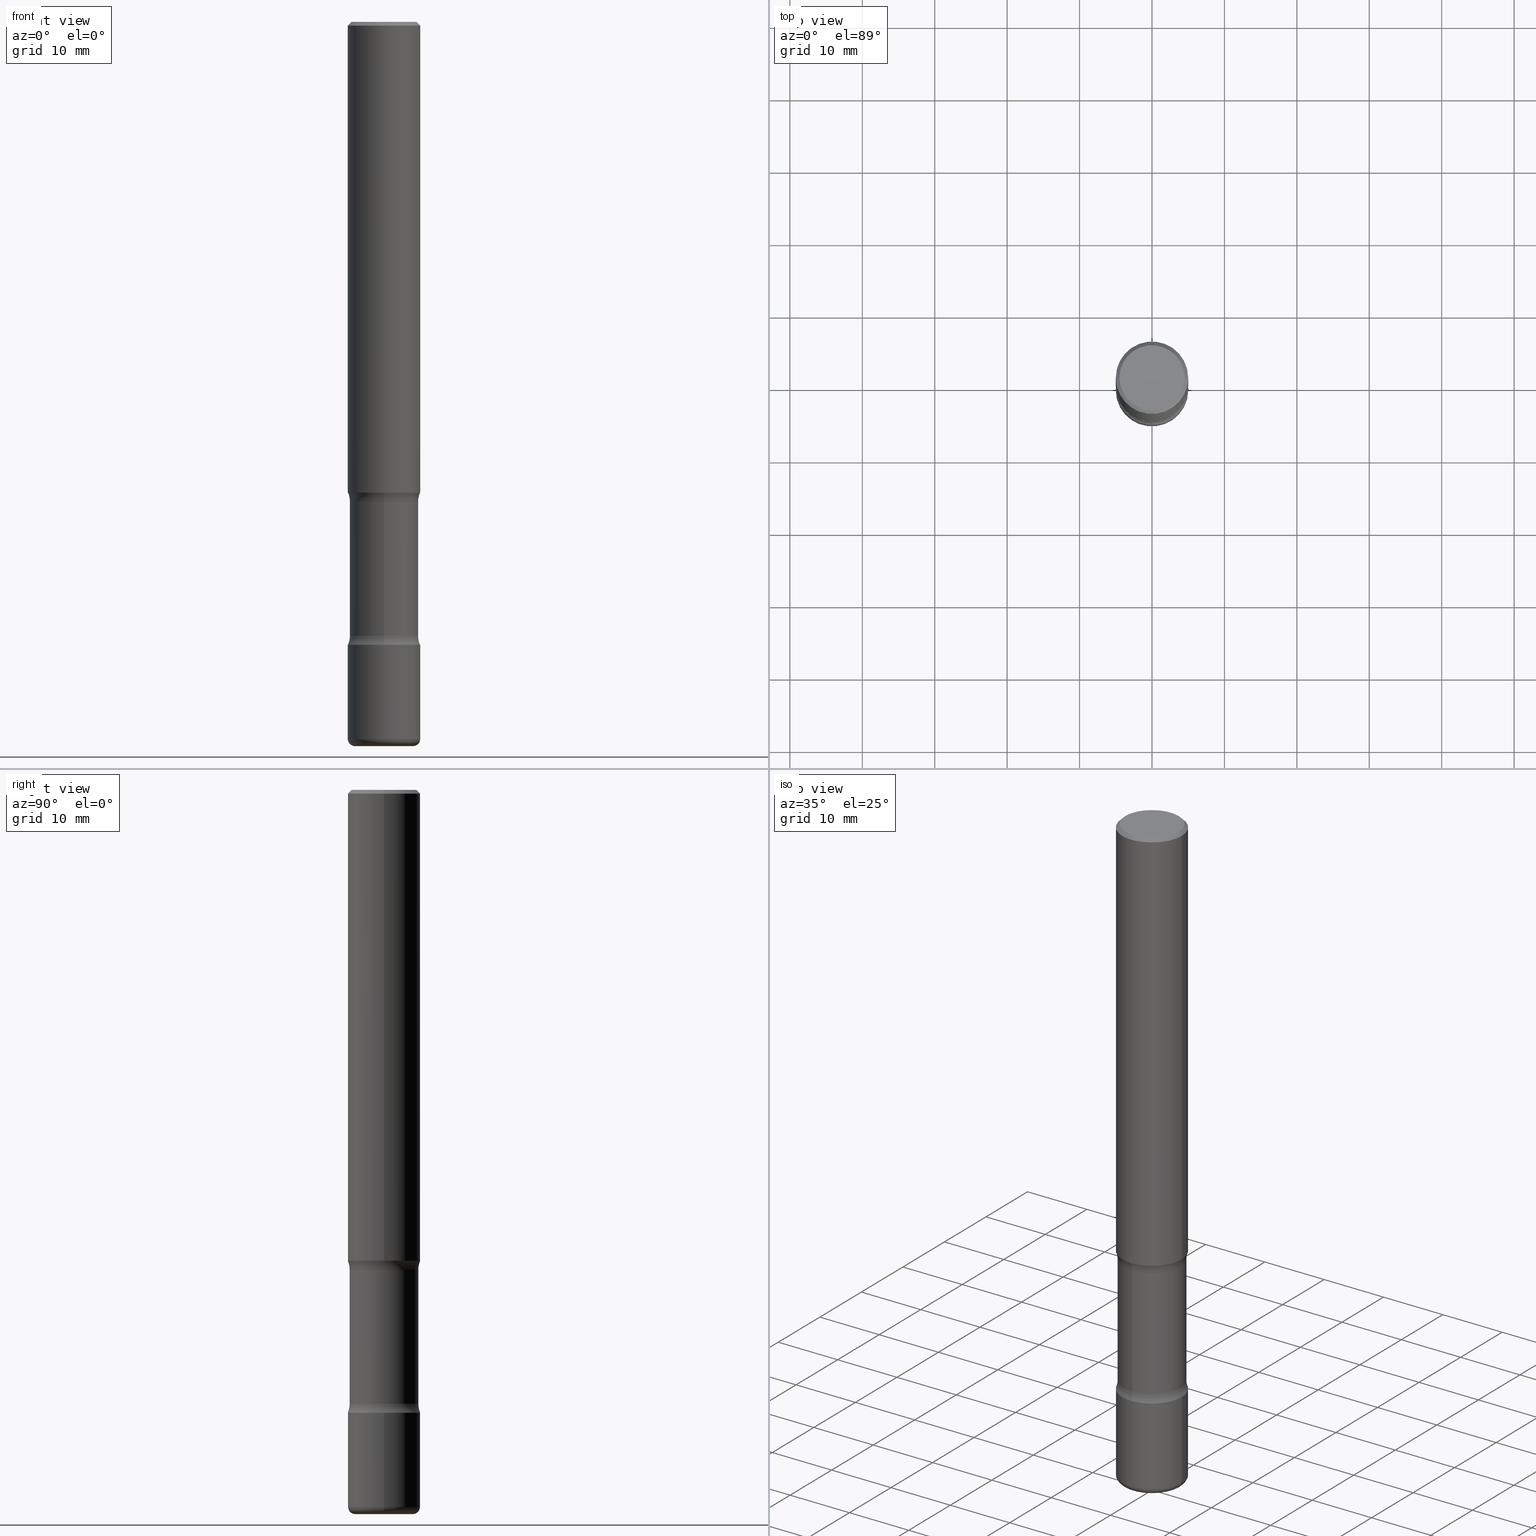
[diagram: canonical four-view strip — front | top / right | iso, engineering-drawing reading convention]
A machine part, canonical four-view strip (front | top / right | iso — engineering-drawing reading convention). The complete STEP part file that produces these views, byte-faithful:
ISO-10303-21;
HEADER;
FILE_DESCRIPTION (( 'STEP AP203' ),
    '1' );
FILE_NAME ('44799.STEP',
    '2024-03-02T03:28:27',
    ( '' ),
    ( '' ),
    'SwSTEP 2.0',
    'SolidWorks 2023',
    '' );
FILE_SCHEMA (( 'CONFIG_CONTROL_DESIGN' ));
ENDSEC;

DATA;
#1 = ADVANCED_FACE ( 'NONE', ( #496 ), #419, .F. ) ;
#2 = ORIENTED_EDGE ( 'NONE', *, *, #285, .T. ) ;
#3 = AXIS2_PLACEMENT_3D ( 'NONE', #538, #10, #103 ) ;
#4 = LENGTH_MEASURE_WITH_UNIT ( LENGTH_MEASURE( 0.02539999999999999897 ), #223 );
#5 = ORGANIZATION ( 'UNSPECIFIED', 'UNSPECIFIED', '' ) ;
#6 = ORIENTED_EDGE ( 'NONE', *, *, #437, .F. ) ;
#7 = DATE_AND_TIME ( #192, #208 ) ;
#8 = ORIENTED_EDGE ( 'NONE', *, *, #105, .F. ) ;
#9 = DIRECTION ( 'NONE',  ( 1.000000000000000000, -6.982962677686266711E-15, 4.875932113059883053E-29 ) ) ;
#10 = DIRECTION ( 'NONE',  ( -2.445468806185136597E-29, 3.491481338843145583E-15, 1.000000000000000000 ) ) ;
#11 = ORIENTED_EDGE ( 'NONE', *, *, #336, .T. ) ;
#12 = ADVANCED_FACE ( 'NONE', ( #191 ), #241, .T. ) ;
#13 =( CONVERSION_BASED_UNIT ( 'INCH', #4 ) LENGTH_UNIT ( ) NAMED_UNIT ( #250 ) );
#14 = LINE ( 'NONE', #466, #460 ) ;
#15 = AXIS2_PLACEMENT_3D ( 'NONE', #478, #251, #34 ) ;
#16 = ORIENTED_EDGE ( 'NONE', *, *, #287, .F. ) ;
#17 = PERSON_AND_ORGANIZATION ( #373, #5 ) ;
#18 = DIRECTION ( 'NONE',  ( 2.591588243807108620E-29, -3.282229987566573640E-15, -1.000000000000000000 ) ) ;
#19 = ORIENTED_EDGE ( 'NONE', *, *, #44, .T. ) ;
#20 = CARTESIAN_POINT ( 'NONE',  ( 4.890937612370289799E-31, -6.982962677686315028E-17, -0.02000000000000006981 ) ) ;
#21 = DIRECTION ( 'NONE',  ( 2.445468806185136597E-29, -3.491481338843145583E-15, -1.000000000000000000 ) ) ;
#22 = CC_DESIGN_PERSON_AND_ORGANIZATION_ASSIGNMENT ( #484, #98, ( #302 ) ) ;
#23 = FACE_OUTER_BOUND ( 'NONE', #92, .T. ) ;
#24 = AXIS2_PLACEMENT_3D ( 'NONE', #244, #333, #77 ) ;
#25 = APPROVAL_PERSON_ORGANIZATION ( #401, #482, #188 ) ;
#26 = PERSON_AND_ORGANIZATION ( #373, #5 ) ;
#27 = DIRECTION ( 'NONE',  ( -1.000000000000000000, 6.982962677686265922E-15, -4.876176775795935793E-29 ) ) ;
#28 = CARTESIAN_POINT ( 'NONE',  ( 6.257954675027765161E-29, -8.934700746099610252E-15, -2.559000000000000163 ) ) ;
#29 = CARTESIAN_POINT ( 'NONE',  ( 6.257954675027765161E-29, -8.934700746099610252E-15, -2.559000000000000163 ) ) ;
#30 = CC_DESIGN_PERSON_AND_ORGANIZATION_ASSIGNMENT ( #411, #451, ( #96 ) ) ;
#31 = CLOSED_SHELL ( 'NONE', ( #58, #335, #204, #78, #270, #246, #1, #416 ) ) ;
#32 = CIRCLE ( 'NONE', #321, 0.1250000000000000278 ) ;
#33 = SECURITY_CLASSIFICATION ( '', '', #66 ) ;
#34 = DIRECTION ( 'NONE',  ( 6.982962677686266711E-15, 1.000000000000000000, -2.927241354046892304E-15 ) ) ;
#35 = CARTESIAN_POINT ( 'NONE',  ( -2.138074201005416717E-15, -0.3116500000000117510, -3.336343352317407085 ) ) ;
#36 = CYLINDRICAL_SURFACE ( 'NONE', #420, 0.1866500000000000381 ) ;
#37 = CARTESIAN_POINT ( 'NONE',  ( 2.176240318500987949E-15, 0.3116499999999908788, -2.608456647682593665 ) ) ;
#38 = VERTEX_POINT ( 'NONE', #153 ) ;
#39 = CIRCLE ( 'NONE', #123, 0.1968500000000001082 ) ;
#40 = AXIS2_PLACEMENT_3D ( 'NONE', #405, #184, #219 ) ;
#41 = CARTESIAN_POINT ( 'NONE',  ( 0.1768499999999998129, -1.316798864272041155E-15, 4.268512490109333727E-18 ) ) ;
#42 = ORIENTED_EDGE ( 'NONE', *, *, #329, .F. ) ;
#43 = DIRECTION ( 'NONE',  ( 2.591588243807108620E-29, -3.282229987566573640E-15, -1.000000000000000000 ) ) ;
#44 = EDGE_CURVE ( 'NONE', #557, #520, #413, .T. ) ;
#45 = ORIENTED_EDGE ( 'NONE', *, *, #511, .T. ) ;
#46 = ADVANCED_FACE ( 'NONE', ( #529 ), #274, .T. ) ;
#47 = ADVANCED_FACE ( 'NONE', ( #97 ), #86, .T. ) ;
#48 = ORIENTED_EDGE ( 'NONE', *, *, #312, .T. ) ;
#49 = AXIS2_PLACEMENT_3D ( 'NONE', #277, #140, #445 ) ;
#50 = CARTESIAN_POINT ( 'NONE',  ( 9.531459218987189074E-29, -1.360839766627504420E-14, -3.897600000000000176 ) ) ;
#51 = AXIS2_PLACEMENT_3D ( 'NONE', #521, #382, #91 ) ;
#52 = DIRECTION ( 'NONE',  ( 1.000000000000000000, -6.982962677686266711E-15, 4.876176775795935793E-29 ) ) ;
#53 = ORIENTED_EDGE ( 'NONE', *, *, #326, .T. ) ;
#54 = MANIFOLD_SOLID_BREP ( 'Body-Move/Copy2[2]', #332 ) ;
#55 = DIRECTION ( 'NONE',  ( -6.982962677686265133E-15, -1.000000000000000000, 0.000000000000000000 ) ) ;
#56 = DIRECTION ( 'NONE',  ( 2.445468806185136597E-29, -3.491481338843145583E-15, -1.000000000000000000 ) ) ;
#57 = CARTESIAN_POINT ( 'NONE',  ( 0.1968500000000001082, -1.319605372015766376E-14, -3.385799999999999699 ) ) ;
#58 = ADVANCED_FACE ( 'NONE', ( #430 ), #539, .T. ) ;
#59 = CARTESIAN_POINT ( 'NONE',  ( -0.1968499999999999694, 1.398703375343756999E-15, -9.682923725166782276E-30 ) ) ;
#60 = ORIENTED_EDGE ( 'NONE', *, *, #437, .T. ) ;
#61 = DIRECTION ( 'NONE',  ( 1.000000000000000000, -6.982962677686263555E-15, 0.000000000000000000 ) ) ;
#62 = DIRECTION ( 'NONE',  ( 2.591588243807108620E-29, -3.282229987566573640E-15, -1.000000000000000000 ) ) ;
#63 = AXIS2_PLACEMENT_3D ( 'NONE', #446, #21, #196 ) ;
#64 = VECTOR ( 'NONE', #439, 39.37007874015748143 ) ;
#65 = ORIENTED_EDGE ( 'NONE', *, *, #518, .F. ) ;
#66 = SECURITY_CLASSIFICATION_LEVEL ( 'unclassified' ) ;
#67 = DIRECTION ( 'NONE',  ( 6.982962677686265922E-15, 1.000000000000000000, -3.282229987566573640E-15 ) ) ;
#68 = ORIENTED_EDGE ( 'NONE', *, *, #261, .T. ) ;
#69 = CARTESIAN_POINT ( 'NONE',  ( 6.137143124001919052E-29, -9.107709763335080543E-15, -2.559000000000000163 ) ) ;
#70 = ORIENTED_EDGE ( 'NONE', *, *, #74, .T. ) ;
#71 = DIRECTION ( 'NONE',  ( 2.438088387897960049E-29, -3.491481338843145188E-15, -1.000000000000000000 ) ) ;
#72 = AXIS2_PLACEMENT_3D ( 'NONE', #406, #365, #355 ) ;
#73 = VECTOR ( 'NONE', #556, 39.37007874015748143 ) ;
#74 = EDGE_CURVE ( 'NONE', #307, #38, #513, .T. ) ;
#75 = DIRECTION ( 'NONE',  ( -1.000000000000000000, 6.982962677686265922E-15, -4.876176775795935793E-29 ) ) ;
#76 = CARTESIAN_POINT ( 'NONE',  ( 0.1968500000000001082, -1.030929694920215344E-14, -2.559000000000000163 ) ) ;
#77 = DIRECTION ( 'NONE',  ( -6.982962677686265922E-15, -1.000000000000000000, 3.282229987566573640E-15 ) ) ;
#78 = ADVANCED_FACE ( 'NONE', ( #457 ), #160, .F. ) ;
#79 = AXIS2_PLACEMENT_3D ( 'NONE', #449, #111, #280 ) ;
#80 = CARTESIAN_POINT ( 'NONE',  ( -0.1968500000000001082, -1.131622421632132460E-14, -3.385799999999999699 ) ) ;
#81 = ADVANCED_FACE ( 'NONE', ( #226 ), #315, .T. ) ;
#82 = CARTESIAN_POINT ( 'NONE',  ( 9.531459218987189074E-29, -1.360839766627504420E-14, -3.897600000000000176 ) ) ;
#83 = VERTEX_POINT ( 'NONE', #318 ) ;
#84 = CARTESIAN_POINT ( 'NONE',  ( -0.1968500000000000527, -1.220969429093128562E-14, -3.897600000000000176 ) ) ;
#85 = ORIENTED_EDGE ( 'NONE', *, *, #346, .T. ) ;
#86 = CONICAL_SURFACE ( 'NONE', #197, 0.1968499999999998307, 0.7853981633974471688 ) ;
#87 = AXIS2_PLACEMENT_3D ( 'NONE', #50, #357, #61 ) ;
#88 = DIRECTION ( 'NONE',  ( 2.591588243807108620E-29, -3.282229987566573640E-15, -1.000000000000000000 ) ) ;
#89 = ORIENTED_EDGE ( 'NONE', *, *, #452, .T. ) ;
#90 = EDGE_CURVE ( 'NONE', #278, #483, #32, .T. ) ;
#91 = DIRECTION ( 'NONE',  ( 6.982962677686265922E-15, 1.000000000000000000, -2.775563112689115117E-15 ) ) ;
#92 = EDGE_LOOP ( 'NONE', ( #359, #186, #144, #265 ) ) ;
#93 = CARTESIAN_POINT ( 'NONE',  ( 8.151697017269320442E-29, -1.165912942494680306E-14, -3.336343352317407973 ) ) ;
#94 = ORIENTED_EDGE ( 'NONE', *, *, #118, .F. ) ;
#95 = AXIS2_PLACEMENT_3D ( 'NONE', #20, #547, #459 ) ;
#96 = PRODUCT_DEFINITION_FORMATION_WITH_SPECIFIED_SOURCE ( 'ANY', '', #302, .NOT_KNOWN. ) ;
#97 = FACE_OUTER_BOUND ( 'NONE', #526, .T. ) ;
#98 = PERSON_AND_ORGANIZATION_ROLE ( 'design_owner' ) ;
#99 = DIRECTION ( 'NONE',  ( -2.445468806185136877E-29, 3.491481338843145188E-15, 1.000000000000000000 ) ) ;
#100 = ORIENTED_EDGE ( 'NONE', *, *, #473, .F. ) ;
#101 = EDGE_CURVE ( 'NONE', #472, #479, #481, .T. ) ;
#102 = CARTESIAN_POINT ( 'NONE',  ( -1.043851414335219820E-46, 1.490343170380447200E-32, 4.268512490100411279E-18 ) ) ;
#103 = DIRECTION ( 'NONE',  ( 1.000000000000000000, -6.982962677686266711E-15, 4.876176775795935793E-29 ) ) ;
#104 = ORIENTED_EDGE ( 'NONE', *, *, #105, .T. ) ;
#105 = EDGE_CURVE ( 'NONE', #38, #483, #266, .T. ) ;
#106 = DIRECTION ( 'NONE',  ( -2.445468806185136597E-29, 3.491481338843145583E-15, 1.000000000000000000 ) ) ;
#107 = AXIS2_PLACEMENT_3D ( 'NONE', #469, #169, #125 ) ;
#108 = AXIS2_PLACEMENT_3D ( 'NONE', #69, #43, #558 ) ;
#109 = APPROVAL ( #238, 'UNSPECIFIED' ) ;
#110 = LINE ( 'NONE', #279, #555 ) ;
#111 = DIRECTION ( 'NONE',  ( -2.445468806185136597E-29, 3.491481338843145583E-15, 1.000000000000000000 ) ) ;
#112 = DIRECTION ( 'NONE',  ( 1.000000000000000000, -6.982962677686265133E-15, 0.000000000000000000 ) ) ;
#113 = DATE_AND_TIME ( #455, #393 ) ;
#114 = DIRECTION ( 'NONE',  ( 1.000000000000000000, -6.860497997771530774E-15, 4.843361469599724329E-29 ) ) ;
#115 = EDGE_CURVE ( 'NONE', #343, #240, #549, .T. ) ;
#116 = AXIS2_PLACEMENT_3D ( 'NONE', #525, #440, #52 ) ;
#117 = LOCAL_TIME ( 22, 28, 27.00000000000000000, #317 ) ;
#118 = EDGE_CURVE ( 'NONE', #386, #126, #290, .T. ) ;
#119 = DIRECTION ( 'NONE',  ( 6.982962677686266711E-15, 1.000000000000000000, -2.927241354046892699E-15 ) ) ;
#120 = DIRECTION ( 'NONE',  ( -2.445468806185136877E-29, 3.491481338843145188E-15, 1.000000000000000000 ) ) ;
#121 = DIRECTION ( 'NONE',  ( -2.445468806185136597E-29, 3.491481338843145583E-15, 1.000000000000000000 ) ) ;
#122 = FACE_OUTER_BOUND ( 'NONE', #141, .T. ) ;
#123 = AXIS2_PLACEMENT_3D ( 'NONE', #417, #281, #159 ) ;
#124 = VERTEX_POINT ( 'NONE', #229 ) ;
#125 = DIRECTION ( 'NONE',  ( -1.000000000000000000, 6.982962677686265922E-15, -4.876176775795935793E-29 ) ) ;
#126 = VERTEX_POINT ( 'NONE', #148 ) ;
#127 = DIRECTION ( 'NONE',  ( 1.000000000000000000, -6.982962677686265133E-15, 0.000000000000000000 ) ) ;
#128 = VERTEX_POINT ( 'NONE', #182 ) ;
#129 = DIRECTION ( 'NONE',  ( -6.982962677686267499E-15, -1.000000000000000000, 0.000000000000000000 ) ) ;
#130 = ORIENTED_EDGE ( 'NONE', *, *, #209, .T. ) ;
#131 = CIRCLE ( 'NONE', #49, 0.1968500000000002748 ) ;
#132 = LOCAL_TIME ( 22, 28, 27.00000000000000000, #361 ) ;
#133 = DIRECTION ( 'NONE',  ( -2.438088387897960049E-29, 3.491481338843145188E-15, 1.000000000000000000 ) ) ;
#134 = DIRECTION ( 'NONE',  ( 2.591588243807108620E-29, -3.282229987566573640E-15, -1.000000000000000000 ) ) ;
#135 = EDGE_LOOP ( 'NONE', ( #16, #353, #89, #489 ) ) ;
#136 = PERSON_AND_ORGANIZATION ( #373, #5 ) ;
#137 = CARTESIAN_POINT ( 'NONE',  ( 0.1968499999999998307, -1.420318657638187938E-15, -0.02000000000000006981 ) ) ;
#138 = EDGE_LOOP ( 'NONE', ( #431, #517 ) ) ;
#139 = COORDINATED_UNIVERSAL_TIME_OFFSET ( 5, 0, .BEHIND. ) ;
#140 = DIRECTION ( 'NONE',  ( 2.591588243807108620E-29, -3.282229987566573640E-15, -1.000000000000000000 ) ) ;
#141 = EDGE_LOOP ( 'NONE', ( #42, #262 ) ) ;
#142 = CIRCLE ( 'NONE', #505, 0.1250000000000000278 ) ;
#143 = AXIS2_PLACEMENT_3D ( 'NONE', #165, #383, #127 ) ;
#144 = ORIENTED_EDGE ( 'NONE', *, *, #158, .T. ) ;
#145 = APPLICATION_PROTOCOL_DEFINITION ( 'international standard', 'config_control_design', 1994, #330 ) ;
#146 = EDGE_LOOP ( 'NONE', ( #303, #345, #341, #8 ) ) ;
#147 = APPROVAL_ROLE ( '' ) ;
#148 = CARTESIAN_POINT ( 'NONE',  ( 0.1968500000000000527, -1.498299386937758423E-14, -3.897600000000000176 ) ) ;
#149 = PRODUCT_DEFINITION_SHAPE ( 'NONE', 'NONE',  #407 ) ;
#150 = EDGE_LOOP ( 'NONE', ( #19, #434 ) ) ;
#151 = VECTOR ( 'NONE', #179, 39.37007874015748143 ) ;
#152 = CIRCLE ( 'NONE', #532, 0.1968500000000001082 ) ;
#153 = CARTESIAN_POINT ( 'NONE',  ( -1.315500491072608935E-15, -0.1866500000000116399, -3.336343352317407529 ) ) ;
#154 = DIRECTION ( 'NONE',  ( -2.445468806185136877E-29, 3.491481338843145188E-15, 1.000000000000000000 ) ) ;
#155 = PERSON_AND_ORGANIZATION ( #373, #5 ) ;
#156 = EDGE_CURVE ( 'NONE', #194, #128, #131, .T. ) ;
#157 = FACE_OUTER_BOUND ( 'NONE', #305, .T. ) ;
#158 = EDGE_CURVE ( 'NONE', #296, #479, #264, .T. ) ;
#159 = DIRECTION ( 'NONE',  ( 6.982962677686265922E-15, 1.000000000000000000, -2.775563112689115117E-15 ) ) ;
#160 = TOROIDAL_SURFACE ( 'NONE', #72, 0.3116500000000000936, 0.1250000000000000278 ) ;
#161 = CIRCLE ( 'NONE', #467, 0.1574500000000002009 ) ;
#162 = UNCERTAINTY_MEASURE_WITH_UNIT (LENGTH_MEASURE( 1.000000000000000082E-05 ), #13, 'distance_accuracy_value', 'NONE');
#163 = CARTESIAN_POINT ( 'NONE',  ( 1.374596203102624439E-15, 0.1968499999999882288, -3.385800000000000143 ) ) ;
#164 = DIRECTION ( 'NONE',  ( -2.445468806185136597E-29, 3.491481338843145583E-15, 1.000000000000000000 ) ) ;
#165 = CARTESIAN_POINT ( 'NONE',  ( 8.279868283981634472E-29, -1.182145751705512057E-14, -3.385799999999999699 ) ) ;
#166 = AXIS2_PLACEMENT_3D ( 'NONE', #495, #106, #193 ) ;
#167 = ORIENTED_EDGE ( 'NONE', *, *, #329, .T. ) ;
#168 = CIRCLE ( 'NONE', #243, 0.1968500000000001082 ) ;
#169 = DIRECTION ( 'NONE',  ( 2.438088387897960049E-29, -3.491481338843145188E-15, -1.000000000000000000 ) ) ;
#170 = ORIENTED_EDGE ( 'NONE', *, *, #542, .F. ) ;
#171 = CARTESIAN_POINT ( 'NONE',  ( 0.1968499999999998307, -1.420318657638187938E-15, -0.02000000000000006981 ) ) ;
#172 = ORIENTED_EDGE ( 'NONE', *, *, #256, .T. ) ;
#173 = CARTESIAN_POINT ( 'NONE',  ( 1.303369983790223149E-15, 0.1866499999999883530, -3.336343352317408861 ) ) ;
#174 = ORIENTED_EDGE ( 'NONE', *, *, #115, .T. ) ;
#175 = AXIS2_PLACEMENT_3D ( 'NONE', #272, #454, #236 ) ;
#176 = AXIS2_PLACEMENT_3D ( 'NONE', #347, #164, #295 ) ;
#177 = DIRECTION ( 'NONE',  ( 1.000000000000000000, -6.860497997771530774E-15, 4.843361469599724329E-29 ) ) ;
#178 = DIRECTION ( 'NONE',  ( 1.000000000000000000, 0.000000000000000000, 0.000000000000000000 ) ) ;
#179 = DIRECTION ( 'NONE',  ( -2.445468806185136877E-29, 3.491481338843145188E-15, 1.000000000000000000 ) ) ;
#180 = ORIENTED_EDGE ( 'NONE', *, *, #285, .F. ) ;
#181 = APPROVAL_STATUS ( 'not_yet_approved' ) ;
#182 = CARTESIAN_POINT ( 'NONE',  ( -1.350489030861266264E-15, -0.1968500000000093231, -2.558999999999999719 ) ) ;
#183 = EDGE_LOOP ( 'NONE', ( #174, #394, #218, #6 ) ) ;
#184 = DIRECTION ( 'NONE',  ( 7.105427357601001859E-15, 1.000000000000000000, -3.491481338843145583E-15 ) ) ;
#185 = DIRECTION ( 'NONE',  ( -2.445468806185136597E-29, 3.491481338843145583E-15, 1.000000000000000000 ) ) ;
#186 = ORIENTED_EDGE ( 'NONE', *, *, #299, .T. ) ;
#187 = ADVANCED_BREP_SHAPE_REPRESENTATION ( '44799', ( #432, #54, #422, #249 ), #497 ) ;
#188 = APPROVAL_ROLE ( '' ) ;
#189 = AXIS2_PLACEMENT_3D ( 'NONE', #338, #423, #512 ) ;
#190 = CARTESIAN_POINT ( 'NONE',  ( 9.531459218987189074E-29, -1.360839766627504420E-14, -3.897600000000000176 ) ) ;
#191 = FACE_OUTER_BOUND ( 'NONE', #477, .T. ) ;
#192 = CALENDAR_DATE ( 2024, 1, 3 ) ;
#193 = DIRECTION ( 'NONE',  ( 1.000000000000000000, -6.982962677686269866E-15, 0.000000000000000000 ) ) ;
#194 = VERTEX_POINT ( 'NONE', #409 ) ;
#195 = DIRECTION ( 'NONE',  ( -2.445468806185136597E-29, 3.491481338843145583E-15, 1.000000000000000000 ) ) ;
#196 = DIRECTION ( 'NONE',  ( -1.000000000000000000, 6.982962677686266711E-15, 0.000000000000000000 ) ) ;
#197 = AXIS2_PLACEMENT_3D ( 'NONE', #269, #56, #465 ) ;
#198 = DIRECTION ( 'NONE',  ( -2.445468806185136597E-29, 3.491481338843145583E-15, 1.000000000000000000 ) ) ;
#199 = VECTOR ( 'NONE', #387, 39.37007874015748143 ) ;
#200 = COORDINATED_UNIVERSAL_TIME_OFFSET ( 5, 0, .BEHIND. ) ;
#201 = DIRECTION ( 'NONE',  ( 1.000000000000000000, -6.982962677686269077E-15, 4.883557194083114022E-29 ) ) ;
#202 = CARTESIAN_POINT ( 'NONE',  ( 9.708351723968114409E-29, -1.363062268620181708E-14, -3.937000000000000277 ) ) ;
#203 = SHAPE_DEFINITION_REPRESENTATION ( #149, #187 ) ;
#204 = ADVANCED_FACE ( 'NONE', ( #531 ), #221, .F. ) ;
#205 = CARTESIAN_POINT ( 'NONE',  ( 9.627810689950881427E-29, -1.374596203102546184E-14, -3.936999999999999389 ) ) ;
#206 = DIRECTION ( 'NONE',  ( 6.982962677686265922E-15, 1.000000000000000000, -3.282229987566573640E-15 ) ) ;
#207 = CIRCLE ( 'NONE', #275, 0.1968499999999998307 ) ;
#208 = LOCAL_TIME ( 22, 28, 27.00000000000000000, #139 ) ;
#209 = EDGE_CURVE ( 'NONE', #491, #83, #235, .T. ) ;
#210 = DIRECTION ( 'NONE',  ( 2.591588243807108620E-29, -3.282229987566573640E-15, -1.000000000000000000 ) ) ;
#211 = LINE ( 'NONE', #468, #199 ) ;
#212 = ORIENTED_EDGE ( 'NONE', *, *, #287, .T. ) ;
#213 = CIRCLE ( 'NONE', #40, 0.03939999999999978936 ) ;
#214 = ADVANCED_FACE ( 'NONE', ( #306 ), #485, .T. ) ;
#215 = CARTESIAN_POINT ( 'NONE',  ( 9.708351723968114409E-29, -1.363062268620181708E-14, -3.937000000000000277 ) ) ;
#216 = ORIENTED_EDGE ( 'NONE', *, *, #101, .F. ) ;
#217 = CARTESIAN_POINT ( 'NONE',  ( 8.151697017269320442E-29, -1.165912942494680306E-14, -3.336343352317407973 ) ) ;
#218 = ORIENTED_EDGE ( 'NONE', *, *, #551, .F. ) ;
#219 = DIRECTION ( 'NONE',  ( -1.000000000000000000, 7.105427357601014480E-15, 0.000000000000000000 ) ) ;
#220 = ORIENTED_EDGE ( 'NONE', *, *, #452, .F. ) ;
#221 = TOROIDAL_SURFACE ( 'NONE', #348, 0.3116500000000000936, 0.1250000000000000278 ) ;
#222 = AXIS2_PLACEMENT_3D ( 'NONE', #389, #252, #427 ) ;
#223 =( LENGTH_UNIT ( ) NAMED_UNIT ( * ) SI_UNIT ( $, .METRE. ) );
#224 = EDGE_LOOP ( 'NONE', ( #85, #410, #349, #540 ) ) ;
#225 = DIRECTION ( 'NONE',  ( -2.445468806185136597E-29, 3.491481338843145583E-15, 1.000000000000000000 ) ) ;
#226 = FACE_OUTER_BOUND ( 'NONE', #499, .T. ) ;
#227 = EDGE_LOOP ( 'NONE', ( #425, #53, #544, #292 ) ) ;
#228 = DIRECTION ( 'NONE',  ( 0.000000000000000000, 0.000000000000000000, 1.000000000000000000 ) ) ;
#229 = CARTESIAN_POINT ( 'NONE',  ( -1.315500491072630234E-15, -0.1866500000000093362, -2.608456647682591889 ) ) ;
#230 = EDGE_LOOP ( 'NONE', ( #396, #366, #388, #523 ) ) ;
#231 = CIRCLE ( 'NONE', #143, 0.1968500000000001082 ) ;
#232 = ADVANCED_FACE ( 'NONE', ( #395 ), #369, .T. ) ;
#233 = EDGE_LOOP ( 'NONE', ( #391, #70, #104, #444 ) ) ;
#234 = CALENDAR_DATE ( 2024, 1, 3 ) ;
#235 = LINE ( 'NONE', #59, #151 ) ;
#236 = DIRECTION ( 'NONE',  ( 6.982962677686265922E-15, 1.000000000000000000, -3.282229987566573640E-15 ) ) ;
#237 = EDGE_CURVE ( 'NONE', #126, #557, #14, .T. ) ;
#238 = APPROVAL_STATUS ( 'not_yet_approved' ) ;
#239 = PLANE ( 'NONE',  #300 ) ;
#240 = VERTEX_POINT ( 'NONE', #543 ) ;
#241 = CONICAL_SURFACE ( 'NONE', #63, 0.1968499999999998307, 0.7853981633974471688 ) ;
#242 = FACE_OUTER_BOUND ( 'NONE', #138, .T. ) ;
#243 = AXIS2_PLACEMENT_3D ( 'NONE', #376, #121, #112 ) ;
#244 = CARTESIAN_POINT ( 'NONE',  ( 8.279868283981634472E-29, -1.182145751705512057E-14, -3.385799999999999699 ) ) ;
#245 = DIRECTION ( 'NONE',  ( 1.000000000000000000, -6.982962677686265133E-15, 0.000000000000000000 ) ) ;
#246 = ADVANCED_FACE ( 'NONE', ( #157 ), #418, .F. ) ;
#247 = CARTESIAN_POINT ( 'NONE',  ( -1.350489030861243387E-15, -0.1968500000000119043, -3.385799999999999255 ) ) ;
#248 = AXIS2_PLACEMENT_3D ( 'NONE', #202, #134, #119 ) ;
#249 = AXIS2_PLACEMENT_3D ( 'NONE', #398, #228, #178 ) ;
#250 = DIMENSIONAL_EXPONENTS ( 1.000000000000000000, 0.000000000000000000, 0.000000000000000000, 0.000000000000000000, 0.000000000000000000, 0.000000000000000000, 0.000000000000000000 ) ;
#251 = DIRECTION ( 'NONE',  ( 2.591588243807108620E-29, -3.282229987566573640E-15, -1.000000000000000000 ) ) ;
#252 = DIRECTION ( 'NONE',  ( -6.982962677686266711E-15, -1.000000000000000000, 3.491481338843145583E-15 ) ) ;
#253 = ORIENTED_EDGE ( 'NONE', *, *, #400, .T. ) ;
#254 = ADVANCED_FACE ( 'NONE', ( #23 ), #372, .T. ) ;
#255 = FACE_OUTER_BOUND ( 'NONE', #438, .T. ) ;
#256 = EDGE_CURVE ( 'NONE', #83, #479, #207, .T. ) ;
#257 = ORIENTED_EDGE ( 'NONE', *, *, #400, .F. ) ;
#258 = CIRCLE ( 'NONE', #15, 0.1866500000000000659 ) ;
#259 = DIRECTION ( 'NONE',  ( 6.982962677686266711E-15, 1.000000000000000000, -2.927241354046892699E-15 ) ) ;
#260 = ORIENTED_EDGE ( 'NONE', *, *, #312, .F. ) ;
#261 = EDGE_CURVE ( 'NONE', #307, #278, #39, .T. ) ;
#262 = ORIENTED_EDGE ( 'NONE', *, *, #299, .F. ) ;
#263 = PRODUCT_RELATED_PRODUCT_CATEGORY ( 'detail', '', ( #302 ) ) ;
#264 = LINE ( 'NONE', #453, #554 ) ;
#265 = ORIENTED_EDGE ( 'NONE', *, *, #256, .F. ) ;
#266 = CIRCLE ( 'NONE', #392, 0.1866500000000000103 ) ;
#267 = AXIS2_PLACEMENT_3D ( 'NONE', #37, #553, #129 ) ;
#268 = CARTESIAN_POINT ( 'NONE',  ( 2.176240318501006882E-15, 0.3116499999999883808, -3.336343352317409305 ) ) ;
#269 = CARTESIAN_POINT ( 'NONE',  ( 4.890937612370289799E-31, -6.982962677686315028E-17, -0.02000000000000006981 ) ) ;
#270 = ADVANCED_FACE ( 'NONE', ( #504 ), #327, .F. ) ;
#271 = APPLICATION_PROTOCOL_DEFINITION ( 'international standard', 'config_control_design', 1994, #435 ) ;
#272 = CARTESIAN_POINT ( 'NONE',  ( 8.158923594815368929E-29, -1.164878055458961151E-14, -3.336343352317407973 ) ) ;
#273 = APPROVAL_STATUS ( 'not_yet_approved' ) ;
#274 = CYLINDRICAL_SURFACE ( 'NONE', #79, 0.1968500000000001082 ) ;
#275 = AXIS2_PLACEMENT_3D ( 'NONE', #375, #510, #546 ) ;
#276 = CIRCLE ( 'NONE', #189, 0.1866500000000000659 ) ;
#277 = CARTESIAN_POINT ( 'NONE',  ( 6.137143124001919052E-29, -9.107709763335080543E-15, -2.559000000000000163 ) ) ;
#278 = VERTEX_POINT ( 'NONE', #163 ) ;
#279 = CARTESIAN_POINT ( 'NONE',  ( -0.1968500000000001082, 1.398703375343757985E-15, -9.682923725166787881E-30 ) ) ;
#280 = DIRECTION ( 'NONE',  ( 1.000000000000000000, -6.982962677686266711E-15, 4.876176775795935793E-29 ) ) ;
#281 = DIRECTION ( 'NONE',  ( 2.591588243807108620E-29, -3.282229987566573640E-15, -1.000000000000000000 ) ) ;
#282 = AXIS2_PLACEMENT_3D ( 'NONE', #190, #288, #201 ) ;
#283 = CARTESIAN_POINT ( 'NONE',  ( 8.279868283981634472E-29, -1.182145751705512057E-14, -3.385799999999999699 ) ) ;
#284 = CIRCLE ( 'NONE', #108, 0.1968500000000002748 ) ;
#285 = EDGE_CURVE ( 'NONE', #479, #83, #428, .T. ) ;
#286 = DIRECTION ( 'NONE',  ( -2.445468806185136597E-29, 3.491481338843145583E-15, 1.000000000000000000 ) ) ;
#287 = EDGE_CURVE ( 'NONE', #124, #128, #142, .T. ) ;
#288 = DIRECTION ( 'NONE',  ( -2.445468806185136597E-29, 3.491481338843145583E-15, 1.000000000000000000 ) ) ;
#289 = DIRECTION ( 'NONE',  ( 6.982962677686265922E-15, 1.000000000000000000, -3.282229987566573640E-15 ) ) ;
#290 = CIRCLE ( 'NONE', #486, 0.1968500000000001360 ) ;
#291 = AXIS2_PLACEMENT_3D ( 'NONE', #412, #210, #289 ) ;
#292 = ORIENTED_EDGE ( 'NONE', *, *, #237, .F. ) ;
#293 = LINE ( 'NONE', #421, #73 ) ;
#294 = CC_DESIGN_PERSON_AND_ORGANIZATION_ASSIGNMENT ( #136, #304, ( #96 ) ) ;
#295 = DIRECTION ( 'NONE',  ( 1.000000000000000000, -6.982962677686266711E-15, 4.875932113059883053E-29 ) ) ;
#296 = VERTEX_POINT ( 'NONE', #76 ) ;
#297 = DIRECTION ( 'NONE',  ( 6.982962677686266711E-15, 1.000000000000000000, -2.927241354046893093E-15 ) ) ;
#298 = VERTEX_POINT ( 'NONE', #548 ) ;
#299 = EDGE_CURVE ( 'NONE', #491, #296, #168, .T. ) ;
#300 = AXIS2_PLACEMENT_3D ( 'NONE', #283, #71, #75 ) ;
#301 = FACE_OUTER_BOUND ( 'NONE', #458, .T. ) ;
#302 = PRODUCT ( '44799', '44799', '', ( #530 ) ) ;
#303 = ORIENTED_EDGE ( 'NONE', *, *, #426, .F. ) ;
#304 = PERSON_AND_ORGANIZATION_ROLE ( 'creator' ) ;
#305 = EDGE_LOOP ( 'NONE', ( #45, #68 ) ) ;
#306 = FACE_OUTER_BOUND ( 'NONE', #470, .T. ) ;
#307 = VERTEX_POINT ( 'NONE', #247 ) ;
#308 = AXIS2_PLACEMENT_3D ( 'NONE', #35, #177, #370 ) ;
#309 = AXIS2_PLACEMENT_3D ( 'NONE', #217, #519, #297 ) ;
#310 = ADVANCED_FACE ( 'NONE', ( #328 ), #239, .F. ) ;
#311 = CARTESIAN_POINT ( 'NONE',  ( 9.531459218987189074E-29, -1.360839766627504420E-14, -3.897600000000000176 ) ) ;
#312 = EDGE_CURVE ( 'NONE', #240, #343, #161, .T. ) ;
#313 = ORIENTED_EDGE ( 'NONE', *, *, #118, .T. ) ;
#314 = PERSON_AND_ORGANIZATION ( #373, #5 ) ;
#315 = CYLINDRICAL_SURFACE ( 'NONE', #3, 0.1968500000000001082 ) ;
#316 = VERTEX_POINT ( 'NONE', #498 ) ;
#317 = COORDINATED_UNIVERSAL_TIME_OFFSET ( 5, 0, .BEHIND. ) ;
#318 = CARTESIAN_POINT ( 'NONE',  ( -0.1968499999999998307, 1.304766576325677324E-15, -0.02000000000000006981 ) ) ;
#319 = ORIENTED_EDGE ( 'NONE', *, *, #326, .F. ) ;
#320 = ADVANCED_FACE ( 'NONE', ( #242 ), #550, .F. ) ;
#321 = AXIS2_PLACEMENT_3D ( 'NONE', #268, #362, #55 ) ;
#322 = LOCAL_TIME ( 22, 28, 27.00000000000000000, #541 ) ;
#323 = DIRECTION ( 'NONE',  ( 1.000000000000000000, -6.982962677686266711E-15, 4.876176775795935793E-29 ) ) ;
#324 = DIRECTION ( 'NONE',  ( 1.000000000000000000, -6.982962677686265133E-15, 0.000000000000000000 ) ) ;
#325 = DATE_TIME_ROLE ( 'classification_date' ) ;
#326 = EDGE_CURVE ( 'NONE', #386, #520, #110, .T. ) ;
#327 = PLANE ( 'NONE',  #441 ) ;
#328 = FACE_OUTER_BOUND ( 'NONE', #150, .T. ) ;
#329 = EDGE_CURVE ( 'NONE', #296, #491, #152, .T. ) ;
#330 = APPLICATION_CONTEXT ( 'configuration controlled 3d designs of mechanical parts and assemblies' ) ;
#331 = PERSON_AND_ORGANIZATION_ROLE ( 'classification_officer' ) ;
#332 = CLOSED_SHELL ( 'NONE', ( #214, #47, #12, #320, #480, #254 ) ) ;
#333 = DIRECTION ( 'NONE',  ( -2.591588243807108060E-29, 3.282229987566573640E-15, 1.000000000000000000 ) ) ;
#334 = AXIS2_PLACEMENT_3D ( 'NONE', #474, #133, #560 ) ;
#335 = ADVANCED_FACE ( 'NONE', ( #379 ), #487, .F. ) ;
#336 = EDGE_CURVE ( 'NONE', #128, #194, #284, .T. ) ;
#337 = ADVANCED_FACE ( 'NONE', ( #301 ), #442, .T. ) ;
#338 = CARTESIAN_POINT ( 'NONE',  ( 6.265314390714234203E-29, -9.270037855443396476E-15, -2.608456647682592333 ) ) ;
#339 = LINE ( 'NONE', #514, #64 ) ;
#340 = AXIS2_PLACEMENT_3D ( 'NONE', #402, #363, #324 ) ;
#341 = ORIENTED_EDGE ( 'NONE', *, *, #536, .T. ) ;
#342 = PLANE ( 'NONE',  #334 ) ;
#343 = VERTEX_POINT ( 'NONE', #471 ) ;
#344 = FACE_OUTER_BOUND ( 'NONE', #146, .T. ) ;
#345 = ORIENTED_EDGE ( 'NONE', *, *, #518, .T. ) ;
#346 = EDGE_CURVE ( 'NONE', #298, #124, #258, .T. ) ;
#347 = CARTESIAN_POINT ( 'NONE',  ( -1.043851414335219820E-46, 1.490343170380447200E-32, 4.268512490100411279E-18 ) ) ;
#348 = AXIS2_PLACEMENT_3D ( 'NONE', #448, #18, #67 ) ;
#349 = ORIENTED_EDGE ( 'NONE', *, *, #377, .F. ) ;
#350 = CIRCLE ( 'NONE', #176, 0.1768499999999998129 ) ;
#351 = CC_DESIGN_APPROVAL ( #109, ( #33 ) ) ;
#352 = APPROVAL_DATE_TIME ( #534, #482 ) ;
#353 = ORIENTED_EDGE ( 'NONE', *, *, #346, .F. ) ;
#354 = DATE_AND_TIME ( #494, #117 ) ;
#355 = DIRECTION ( 'NONE',  ( 6.982962677686265922E-15, 1.000000000000000000, -3.282229987566573640E-15 ) ) ;
#356 = ORIENTED_EDGE ( 'NONE', *, *, #156, .F. ) ;
#357 = DIRECTION ( 'NONE',  ( -2.445468806185136597E-29, 3.491481338843145583E-15, 1.000000000000000000 ) ) ;
#358 = DIRECTION ( 'NONE',  ( 1.000000000000000000, -6.982962677686263555E-15, 0.000000000000000000 ) ) ;
#359 = ORIENTED_EDGE ( 'NONE', *, *, #209, .F. ) ;
#360 = APPROVAL_PERSON_ORGANIZATION ( #17, #397, #147 ) ;
#361 = COORDINATED_UNIVERSAL_TIME_OFFSET ( 5, 0, .BEHIND. ) ;
#362 = DIRECTION ( 'NONE',  ( -1.000000000000000000, 6.982962677686265922E-15, -4.883557194083112340E-29 ) ) ;
#363 = DIRECTION ( 'NONE',  ( -2.445468806185136597E-29, 3.491481338843145583E-15, 1.000000000000000000 ) ) ;
#364 = PERSON_AND_ORGANIZATION_ROLE ( 'creator' ) ;
#365 = DIRECTION ( 'NONE',  ( 2.591588243807108620E-29, -3.282229987566573640E-15, -1.000000000000000000 ) ) ;
#366 = ORIENTED_EDGE ( 'NONE', *, *, #511, .F. ) ;
#367 = DIRECTION ( 'NONE',  ( 1.000000000000000000, -6.982962677686269866E-15, 0.000000000000000000 ) ) ;
#368 = ORIENTED_EDGE ( 'NONE', *, *, #115, .F. ) ;
#369 = TOROIDAL_SURFACE ( 'NONE', #282, 0.1574500000000002009, 0.03939999999999977548 ) ;
#370 = DIRECTION ( 'NONE',  ( 6.860497997771529985E-15, 1.000000000000000000, 0.000000000000000000 ) ) ;
#371 = AXIS2_PLACEMENT_3D ( 'NONE', #102, #225, #9 ) ;
#372 = CYLINDRICAL_SURFACE ( 'NONE', #384, 0.1968499999999999694 ) ;
#373 = PERSON ( 'UNSPECIFIED', 'UNSPECIFIED', 'UNSPECIFIED', ('UNSPECIFIED'), ('UNSPECIFIED'), ('UNSPECIFIED') ) ;
#374 = APPROVAL_DATE_TIME ( #113, #109 ) ;
#375 = CARTESIAN_POINT ( 'NONE',  ( 4.890937612370289799E-31, -6.982962677686315028E-17, -0.02000000000000006981 ) ) ;
#376 = CARTESIAN_POINT ( 'NONE',  ( 6.257954675027765161E-29, -8.934700746099610252E-15, -2.559000000000000163 ) ) ;
#377 = EDGE_CURVE ( 'NONE', #483, #38, #404, .T. ) ;
#378 = CC_DESIGN_PERSON_AND_ORGANIZATION_ASSIGNMENT ( #26, #331, ( #33 ) ) ;
#379 = FACE_OUTER_BOUND ( 'NONE', #233, .T. ) ;
#380 = CIRCLE ( 'NONE', #87, 0.1968500000000001360 ) ;
#381 = DIRECTION ( 'NONE',  ( -2.445468806185136597E-29, 3.491481338843145583E-15, 1.000000000000000000 ) ) ;
#382 = DIRECTION ( 'NONE',  ( 2.591588243807108620E-29, -3.282229987566573640E-15, -1.000000000000000000 ) ) ;
#383 = DIRECTION ( 'NONE',  ( -2.445468806185136597E-29, 3.491481338843145583E-15, 1.000000000000000000 ) ) ;
#384 = AXIS2_PLACEMENT_3D ( 'NONE', #456, #198, #323 ) ;
#385 = CIRCLE ( 'NONE', #222, 0.03939999999999978936 ) ;
#386 = VERTEX_POINT ( 'NONE', #84 ) ;
#387 = DIRECTION ( 'NONE',  ( 2.591588243807108620E-29, -3.282229987566573640E-15, -1.000000000000000000 ) ) ;
#388 = ORIENTED_EDGE ( 'NONE', *, *, #90, .T. ) ;
#389 = CARTESIAN_POINT ( 'NONE',  ( 0.1574500000000002009, -1.470786513987674896E-14, -3.897600000000000176 ) ) ;
#390 = ADVANCED_FACE ( 'NONE', ( #255 ), #433, .T. ) ;
#391 = ORIENTED_EDGE ( 'NONE', *, *, #261, .F. ) ;
#392 = AXIS2_PLACEMENT_3D ( 'NONE', #93, #62, #528 ) ;
#393 = LOCAL_TIME ( 22, 28, 27.00000000000000000, #200 ) ;
#394 = ORIENTED_EDGE ( 'NONE', *, *, #552, .T. ) ;
#395 = FACE_OUTER_BOUND ( 'NONE', #183, .T. ) ;
#396 = ORIENTED_EDGE ( 'NONE', *, *, #74, .F. ) ;
#397 = APPROVAL ( #181, 'UNSPECIFIED' ) ;
#398 = CARTESIAN_POINT ( 'NONE',  ( 0.000000000000000000, 0.000000000000000000, 0.000000000000000000 ) ) ;
#399 = EDGE_LOOP ( 'NONE', ( #65, #212, #11, #220 ) ) ;
#400 = EDGE_CURVE ( 'NONE', #316, #83, #293, .T. ) ;
#401 = PERSON_AND_ORGANIZATION ( #373, #5 ) ;
#402 = CARTESIAN_POINT ( 'NONE',  ( 8.279868283981634472E-29, -1.182145751705512057E-14, -3.385799999999999699 ) ) ;
#403 = CLOSED_SHELL ( 'NONE', ( #46, #232, #390, #337, #81, #310 ) ) ;
#404 = CIRCLE ( 'NONE', #309, 0.1866500000000000103 ) ;
#405 = CARTESIAN_POINT ( 'NONE',  ( -0.1574500000000002009, -1.248964812882076424E-14, -3.897600000000000176 ) ) ;
#406 = CARTESIAN_POINT ( 'NONE',  ( 6.283517401289684484E-29, -9.243970108248332967E-15, -2.608456647682592333 ) ) ;
#407 = PRODUCT_DEFINITION ( 'UNKNOWN', '', #96, #503 ) ;
#408 = EDGE_LOOP ( 'NONE', ( #356, #537 ) ) ;
#409 = CARTESIAN_POINT ( 'NONE',  ( 1.374596203102604520E-15, 0.1968499999999911709, -2.559000000000000608 ) ) ;
#410 = ORIENTED_EDGE ( 'NONE', *, *, #426, .T. ) ;
#411 = PERSON_AND_ORGANIZATION ( #373, #5 ) ;
#412 = CARTESIAN_POINT ( 'NONE',  ( 8.158923594815368929E-29, -1.164878055458961151E-14, -3.336343352317407973 ) ) ;
#413 = CIRCLE ( 'NONE', #340, 0.1968500000000001082 ) ;
#414 = APPROVAL_PERSON_ORGANIZATION ( #155, #109, #500 ) ;
#415 = CARTESIAN_POINT ( 'NONE',  ( -2.138074201005435255E-15, -0.3116500000000093085, -2.608456647682591445 ) ) ;
#416 = ADVANCED_FACE ( 'NONE', ( #344 ), #36, .T. ) ;
#417 = CARTESIAN_POINT ( 'NONE',  ( 8.279868283981634472E-29, -1.182145751705512057E-14, -3.385799999999999699 ) ) ;
#418 = PLANE ( 'NONE',  #24 ) ;
#419 = TOROIDAL_SURFACE ( 'NONE', #175, 0.3116500000000000936, 0.1250000000000000278 ) ;
#420 = AXIS2_PLACEMENT_3D ( 'NONE', #215, #88, #259 ) ;
#421 = CARTESIAN_POINT ( 'NONE',  ( -0.1968499999999998307, 1.304766576325677324E-15, -0.02000000000000006981 ) ) ;
#422 = MANIFOLD_SOLID_BREP ( 'Body-Move/Copy2[4]', #31 ) ;
#423 = DIRECTION ( 'NONE',  ( 2.591588243807108620E-29, -3.282229987566573640E-15, -1.000000000000000000 ) ) ;
#424 = DIRECTION ( 'NONE',  ( 1.000000000000000000, -6.982962677686269077E-15, 4.883557194083114022E-29 ) ) ;
#425 = ORIENTED_EDGE ( 'NONE', *, *, #551, .T. ) ;
#426 = EDGE_CURVE ( 'NONE', #124, #38, #211, .T. ) ;
#427 = DIRECTION ( 'NONE',  ( 1.000000000000000000, -6.982962677686266711E-15, 0.000000000000000000 ) ) ;
#428 = CIRCLE ( 'NONE', #95, 0.1968499999999998307 ) ;
#429 = AXIS2_PLACEMENT_3D ( 'NONE', #82, #381, #424 ) ;
#430 = FACE_OUTER_BOUND ( 'NONE', #224, .T. ) ;
#431 = ORIENTED_EDGE ( 'NONE', *, *, #542, .T. ) ;
#432 = MANIFOLD_SOLID_BREP ( 'Body-Move/Copy2[1]', #403 ) ;
#433 = PLANE ( 'NONE',  #107 ) ;
#434 = ORIENTED_EDGE ( 'NONE', *, *, #473, .T. ) ;
#435 = APPLICATION_CONTEXT ( 'configuration controlled 3d designs of mechanical parts and assemblies' ) ;
#436 = CC_DESIGN_DATE_AND_TIME_ASSIGNMENT ( #463, #325, ( #33 ) ) ;
#437 = EDGE_CURVE ( 'NONE', #343, #126, #385, .T. ) ;
#438 = EDGE_LOOP ( 'NONE', ( #368, #260 ) ) ;
#439 = DIRECTION ( 'NONE',  ( 2.591588243807108620E-29, -3.282229987566573640E-15, -1.000000000000000000 ) ) ;
#440 = DIRECTION ( 'NONE',  ( -2.445468806185136597E-29, 3.491481338843145583E-15, 1.000000000000000000 ) ) ;
#441 = AXIS2_PLACEMENT_3D ( 'NONE', #28, #464, #206 ) ;
#442 = TOROIDAL_SURFACE ( 'NONE', #429, 0.1574500000000002009, 0.03939999999999977548 ) ;
#443 = ORIENTED_EDGE ( 'NONE', *, *, #509, .F. ) ;
#444 = ORIENTED_EDGE ( 'NONE', *, *, #90, .F. ) ;
#445 = DIRECTION ( 'NONE',  ( 6.982962677686265922E-15, 1.000000000000000000, -2.775563112689112751E-15 ) ) ;
#446 = CARTESIAN_POINT ( 'NONE',  ( 4.890937612370289799E-31, -6.982962677686315028E-17, -0.02000000000000006981 ) ) ;
#447 =( NAMED_UNIT ( * ) SI_UNIT ( $, .STERADIAN. ) SOLID_ANGLE_UNIT ( ) );
#448 = CARTESIAN_POINT ( 'NONE',  ( 6.283517401289684484E-29, -9.243970108248332967E-15, -2.608456647682592333 ) ) ;
#449 = CARTESIAN_POINT ( 'NONE',  ( 0.000000000000000000, 0.000000000000000000, 0.000000000000000000 ) ) ;
#450 = CC_DESIGN_APPROVAL ( #482, ( #407 ) ) ;
#451 = PERSON_AND_ORGANIZATION_ROLE ( 'design_supplier' ) ;
#452 = EDGE_CURVE ( 'NONE', #298, #194, #506, .T. ) ;
#453 = CARTESIAN_POINT ( 'NONE',  ( 0.1968499999999999694, -1.374596203102541411E-15, 9.598753983154298056E-30 ) ) ;
#454 = DIRECTION ( 'NONE',  ( 2.591588243807108620E-29, -3.282229987566573640E-15, -1.000000000000000000 ) ) ;
#455 = CALENDAR_DATE ( 2024, 1, 3 ) ;
#456 = CARTESIAN_POINT ( 'NONE',  ( 0.000000000000000000, 0.000000000000000000, 0.000000000000000000 ) ) ;
#457 = FACE_OUTER_BOUND ( 'NONE', #135, .T. ) ;
#458 = EDGE_LOOP ( 'NONE', ( #559, #48, #60, #94 ) ) ;
#459 = DIRECTION ( 'NONE',  ( 1.000000000000000000, -6.982962677686266711E-15, 0.000000000000000000 ) ) ;
#460 = VECTOR ( 'NONE', #154, 39.37007874015748143 ) ;
#461 = CIRCLE ( 'NONE', #371, 0.1768499999999998129 ) ;
#462 = CARTESIAN_POINT ( 'NONE',  ( 1.234936949548814815E-15, 0.1768499999999998129, -6.153342185293594620E-16 ) ) ;
#463 = DATE_AND_TIME ( #234, #322 ) ;
#464 = DIRECTION ( 'NONE',  ( 2.591588243807108060E-29, -3.282229987566573640E-15, -1.000000000000000000 ) ) ;
#465 = DIRECTION ( 'NONE',  ( -1.000000000000000000, 6.982962677686266711E-15, 0.000000000000000000 ) ) ;
#466 = CARTESIAN_POINT ( 'NONE',  ( 0.1968500000000001082, -1.374596203102542397E-15, 9.598753983154305062E-30 ) ) ;
#467 = AXIS2_PLACEMENT_3D ( 'NONE', #205, #195, #367 ) ;
#468 = CARTESIAN_POINT ( 'NONE',  ( -1.280511951283959495E-15, -0.1866500000000136661, -3.936999999999999389 ) ) ;
#469 = CARTESIAN_POINT ( 'NONE',  ( 1.916782435662395970E-28, -8.411947649234456076E-17, -3.937000000000000277 ) ) ;
#470 = EDGE_LOOP ( 'NONE', ( #167, #130, #180, #533 ) ) ;
#471 = CARTESIAN_POINT ( 'NONE',  ( 0.1574500000000002009, -1.484542950462716817E-14, -3.936999999999999389 ) ) ;
#472 = VERTEX_POINT ( 'NONE', #41 ) ;
#473 = EDGE_CURVE ( 'NONE', #520, #557, #231, .T. ) ;
#474 = CARTESIAN_POINT ( 'NONE',  ( 6.257954675027765161E-29, -8.934700746099610252E-15, -2.559000000000000163 ) ) ;
#475 = VECTOR ( 'NONE', #535, 39.37007874015748143 ) ;
#476 = AXIS2_PLACEMENT_3D ( 'NONE', #462, #508, #27 ) ;
#477 = EDGE_LOOP ( 'NONE', ( #216, #170, #253, #172 ) ) ;
#478 = CARTESIAN_POINT ( 'NONE',  ( 6.265314390714234203E-29, -9.270037855443396476E-15, -2.608456647682592333 ) ) ;
#479 = VERTEX_POINT ( 'NONE', #171 ) ;
#480 = ADVANCED_FACE ( 'NONE', ( #122 ), #342, .F. ) ;
#481 = LINE ( 'NONE', #137, #475 ) ;
#482 = APPROVAL ( #273, 'UNSPECIFIED' ) ;
#483 = VERTEX_POINT ( 'NONE', #173 ) ;
#484 = PERSON_AND_ORGANIZATION ( #373, #5 ) ;
#485 = CYLINDRICAL_SURFACE ( 'NONE', #116, 0.1968499999999999694 ) ;
#486 = AXIS2_PLACEMENT_3D ( 'NONE', #311, #185, #358 ) ;
#487 = TOROIDAL_SURFACE ( 'NONE', #291, 0.3116500000000000936, 0.1250000000000000278 ) ;
#488 = CC_DESIGN_DATE_AND_TIME_ASSIGNMENT ( #7, #492, ( #407 ) ) ;
#489 = ORIENTED_EDGE ( 'NONE', *, *, #156, .T. ) ;
#490 =( NAMED_UNIT ( * ) PLANE_ANGLE_UNIT ( ) SI_UNIT ( $, .RADIAN. ) );
#491 = VERTEX_POINT ( 'NONE', #516 ) ;
#492 = DATE_TIME_ROLE ( 'creation_date' ) ;
#493 = ORIENTED_EDGE ( 'NONE', *, *, #101, .T. ) ;
#494 = CALENDAR_DATE ( 2024, 1, 3 ) ;
#495 = CARTESIAN_POINT ( 'NONE',  ( 9.627810689950881427E-29, -1.374596203102546184E-14, -3.936999999999999389 ) ) ;
#496 = FACE_OUTER_BOUND ( 'NONE', #230, .T. ) ;
#497 =( GEOMETRIC_REPRESENTATION_CONTEXT ( 3 ) GLOBAL_UNCERTAINTY_ASSIGNED_CONTEXT ( ( #162 ) ) GLOBAL_UNIT_ASSIGNED_CONTEXT ( ( #13, #490, #447 ) ) REPRESENTATION_CONTEXT ( 'NONE', 'WORKASPACE' ) );
#498 = CARTESIAN_POINT ( 'NONE',  ( -0.1768499999999998129, 1.269851762937246267E-15, 4.268512490091652920E-18 ) ) ;
#499 = EDGE_LOOP ( 'NONE', ( #319, #313, #515, #100 ) ) ;
#500 = APPROVAL_ROLE ( '' ) ;
#501 = DIRECTION ( 'NONE',  ( 6.860497997771532351E-15, 1.000000000000000000, 0.000000000000000000 ) ) ;
#502 = CC_DESIGN_PERSON_AND_ORGANIZATION_ASSIGNMENT ( #314, #364, ( #407 ) ) ;
#503 = DESIGN_CONTEXT ( 'detailed design', #435, 'design' ) ;
#504 = FACE_OUTER_BOUND ( 'NONE', #408, .T. ) ;
#505 = AXIS2_PLACEMENT_3D ( 'NONE', #415, #114, #501 ) ;
#506 = CIRCLE ( 'NONE', #267, 0.1250000000000000278 ) ;
#507 = CC_DESIGN_SECURITY_CLASSIFICATION ( #33, ( #96 ) ) ;
#508 = DIRECTION ( 'NONE',  ( 2.438088387897960049E-29, -3.491481338843145188E-15, -1.000000000000000000 ) ) ;
#509 = EDGE_CURVE ( 'NONE', #472, #316, #350, .T. ) ;
#510 = DIRECTION ( 'NONE',  ( -2.445468806185136597E-29, 3.491481338843145583E-15, 1.000000000000000000 ) ) ;
#511 = EDGE_CURVE ( 'NONE', #278, #307, #545, .T. ) ;
#512 = DIRECTION ( 'NONE',  ( 6.982962677686266711E-15, 1.000000000000000000, -2.927241354046892304E-15 ) ) ;
#513 = CIRCLE ( 'NONE', #308, 0.1250000000000000278 ) ;
#514 = CARTESIAN_POINT ( 'NONE',  ( 1.303369983790238926E-15, 0.1866499999999864101, -3.937000000000000721 ) ) ;
#515 = ORIENTED_EDGE ( 'NONE', *, *, #237, .T. ) ;
#516 = CARTESIAN_POINT ( 'NONE',  ( -0.1968500000000001082, -3.103561811094476227E-15, -2.559000000000000163 ) ) ;
#517 = ORIENTED_EDGE ( 'NONE', *, *, #509, .T. ) ;
#518 = EDGE_CURVE ( 'NONE', #124, #298, #276, .T. ) ;
#519 = DIRECTION ( 'NONE',  ( 2.591588243807108620E-29, -3.282229987566573640E-15, -1.000000000000000000 ) ) ;
#520 = VERTEX_POINT ( 'NONE', #80 ) ;
#521 = CARTESIAN_POINT ( 'NONE',  ( 8.279868283981634472E-29, -1.182145751705512057E-14, -3.385799999999999699 ) ) ;
#522 = CC_DESIGN_APPROVAL ( #397, ( #96 ) ) ;
#523 = ORIENTED_EDGE ( 'NONE', *, *, #377, .T. ) ;
#524 = APPROVAL_DATE_TIME ( #354, #397 ) ;
#525 = CARTESIAN_POINT ( 'NONE',  ( 0.000000000000000000, 0.000000000000000000, 0.000000000000000000 ) ) ;
#526 = EDGE_LOOP ( 'NONE', ( #443, #493, #2, #257 ) ) ;
#527 = CALENDAR_DATE ( 2024, 1, 3 ) ;
#528 = DIRECTION ( 'NONE',  ( 6.982962677686266711E-15, 1.000000000000000000, -2.927241354046893093E-15 ) ) ;
#529 = FACE_OUTER_BOUND ( 'NONE', #227, .T. ) ;
#530 = MECHANICAL_CONTEXT ( 'NONE', #330, 'mechanical' ) ;
#531 = FACE_OUTER_BOUND ( 'NONE', #399, .T. ) ;
#532 = AXIS2_PLACEMENT_3D ( 'NONE', #29, #286, #245 ) ;
#533 = ORIENTED_EDGE ( 'NONE', *, *, #158, .F. ) ;
#534 = DATE_AND_TIME ( #527, #132 ) ;
#535 = DIRECTION ( 'NONE',  ( 0.7071067811865466846, -7.319954787623252890E-15, -0.7071067811865483499 ) ) ;
#536 = EDGE_CURVE ( 'NONE', #298, #483, #339, .T. ) ;
#537 = ORIENTED_EDGE ( 'NONE', *, *, #336, .F. ) ;
#538 = CARTESIAN_POINT ( 'NONE',  ( 0.000000000000000000, 0.000000000000000000, 0.000000000000000000 ) ) ;
#539 = CYLINDRICAL_SURFACE ( 'NONE', #248, 0.1866500000000000381 ) ;
#540 = ORIENTED_EDGE ( 'NONE', *, *, #536, .F. ) ;
#541 = COORDINATED_UNIVERSAL_TIME_OFFSET ( 5, 0, .BEHIND. ) ;
#542 = EDGE_CURVE ( 'NONE', #316, #472, #461, .T. ) ;
#543 = CARTESIAN_POINT ( 'NONE',  ( -0.1574500000000002009, -1.241845339225123375E-14, -3.936999999999999389 ) ) ;
#544 = ORIENTED_EDGE ( 'NONE', *, *, #44, .F. ) ;
#545 = CIRCLE ( 'NONE', #51, 0.1968500000000001082 ) ;
#546 = DIRECTION ( 'NONE',  ( 1.000000000000000000, -6.982962677686266711E-15, 0.000000000000000000 ) ) ;
#547 = DIRECTION ( 'NONE',  ( -2.445468806185136597E-29, 3.491481338843145583E-15, 1.000000000000000000 ) ) ;
#548 = CARTESIAN_POINT ( 'NONE',  ( 1.303369983790204808E-15, 0.1866499999999908233, -2.608456647682592777 ) ) ;
#549 = CIRCLE ( 'NONE', #166, 0.1574500000000002009 ) ;
#550 = PLANE ( 'NONE',  #476 ) ;
#551 = EDGE_CURVE ( 'NONE', #126, #386, #380, .T. ) ;
#552 = EDGE_CURVE ( 'NONE', #240, #386, #213, .T. ) ;
#553 = DIRECTION ( 'NONE',  ( -1.000000000000000000, 6.982962677686265922E-15, -4.883557194083112340E-29 ) ) ;
#554 = VECTOR ( 'NONE', #99, 39.37007874015748143 ) ;
#555 = VECTOR ( 'NONE', #120, 39.37007874015748143 ) ;
#556 = DIRECTION ( 'NONE',  ( -0.7071067811865466846, 2.468850131082247989E-15, -0.7071067811865483499 ) ) ;
#557 = VERTEX_POINT ( 'NONE', #57 ) ;
#558 = DIRECTION ( 'NONE',  ( 6.982962677686265922E-15, 1.000000000000000000, -2.775563112689112751E-15 ) ) ;
#559 = ORIENTED_EDGE ( 'NONE', *, *, #552, .F. ) ;
#560 = DIRECTION ( 'NONE',  ( 1.000000000000000000, -6.982962677686265922E-15, 4.876176775795935793E-29 ) ) ;
ENDSEC;
END-ISO-10303-21;
